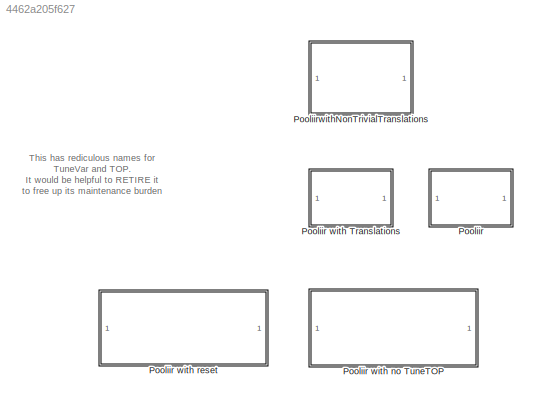
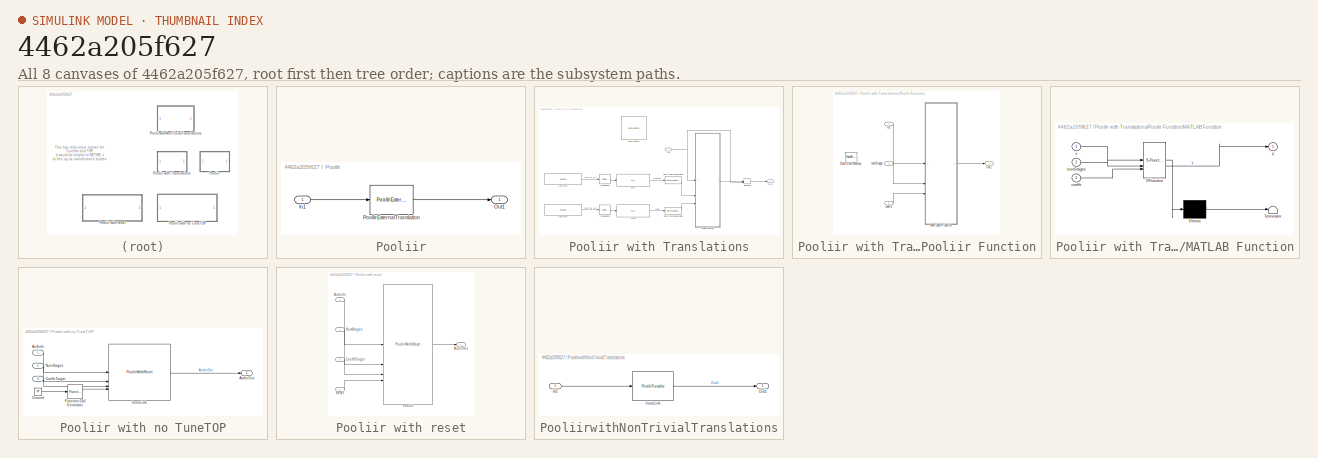
[diagram: thumbnail index - all 8 canvases of the model, root first then tree order]
MODEL slx_4462a205f627
KIND library
CONFIG AbsTol = auto
CONFIG EnableMultiTasking = off
CONFIG FixedStep = auto
CONFIG MaxStep = auto
CONFIG MinStep = auto
CONFIG RelTol = 1e-3
CONFIG SampleTimeConstraint = Unconstrained
CONFIG SolverName = VariableStepAuto
CONFIG StartTime = 0.0
CONFIG StopTime = 10.0
BLOCK [SubSystem] Pooliir
  LoadFcn = fprintf("\n ''%s'' block does not support BTC and hence, it will be deprecated soon. Please replace all the active instances of ""Pooliir"" with an equivalent BTC block.", gcb);
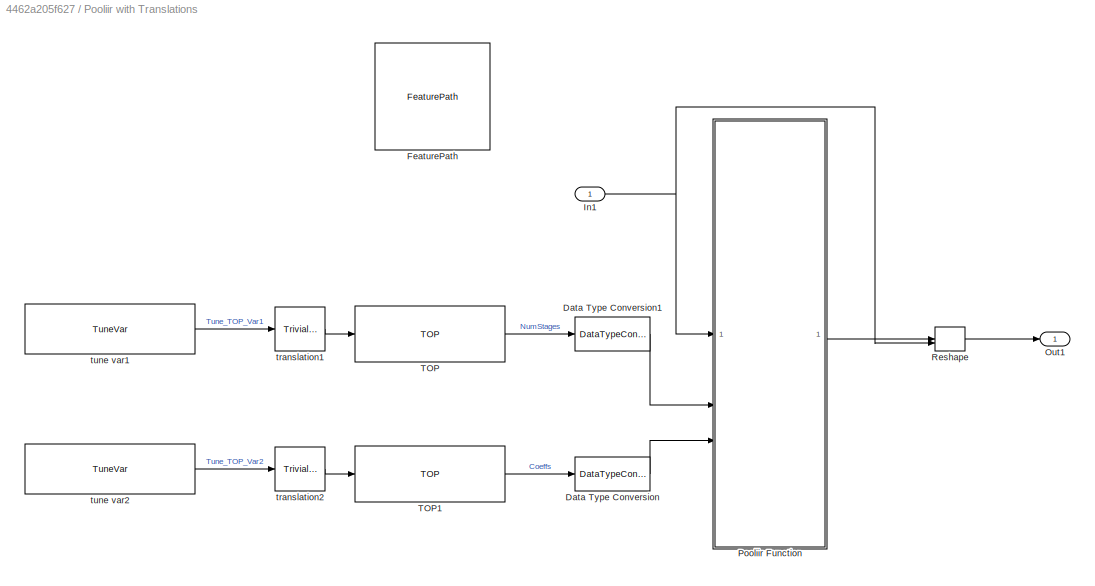
BLOCK [SubSystem] Pooliir with Translations
  Commented = on
BLOCK [DataTypeConversion] Pooliir with Translations/Data Type Conversion
  OutDataTypeStr = single
  RndMeth = Floor
  SaturateOnIntegerOverflow = off
BLOCK [DataTypeConversion] Pooliir with Translations/Data Type Conversion1
  OutDataTypeStr = uint32
  RndMeth = Floor
  SaturateOnIntegerOverflow = off
BLOCK [Reference] Pooliir with Translations/FeaturePath  REF=FeaturePath/FeaturePath
  SourceBlock = FeaturePath/FeaturePath
  SourceProductName = Bose Talaria
  SourceType = Talaria Feature Path
BLOCK [Inport] Pooliir with Translations/In1
BLOCK [Outport] Pooliir with Translations/Out1
  VectorParamsAs1DForOutWhenUnconnected = off
BLOCK [SubSystem] Pooliir with Translations/Pooliir Function
BLOCK [DataStoreMemory] Pooliir with Translations/Pooliir Function/Data Store Memory
  DataStoreName = states
  InitialValue = zeros(1, 2 * maxNumStages)
  OutDataTypeStr = single
  ShowAdditionalParam = off
  SignalType = real
BLOCK [Inport] Pooliir with Translations/Pooliir Function/In1
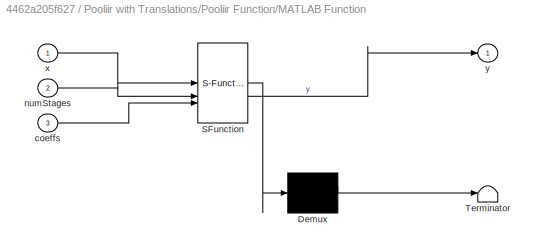
BLOCK [SubSystem] Pooliir with Translations/Pooliir Function/MATLAB Function
  ErrorFcn = Stateflow.Translate.translate
  PermitHierarchicalResolution = ExplicitOnly
  SFBlockType = MATLAB Function
  TreatAsAtomicUnit = on
BLOCK [Demux] Pooliir with Translations/Pooliir Function/MATLAB Function/ Demux 
  Outputs = 1
BLOCK [S-Function] Pooliir with Translations/Pooliir Function/MATLAB Function/ SFunction 
  EnableBusSupport = off
  FunctionName = sf_sfun
  PortCounts = [3 2]
  SFcnIsStateOwnerBlock = off
  SFunctionDeploymentMode = off
  Tag = Stateflow S-Function 2
BLOCK [Terminator] Pooliir with Translations/Pooliir Function/MATLAB Function/ Terminator 
BLOCK [Inport] Pooliir with Translations/Pooliir Function/MATLAB Function/coeffs
  Port = 3
BLOCK [Inport] Pooliir with Translations/Pooliir Function/MATLAB Function/numStages
  Port = 2
BLOCK [Inport] Pooliir with Translations/Pooliir Function/MATLAB Function/x
BLOCK [Outport] Pooliir with Translations/Pooliir Function/MATLAB Function/y
  VectorParamsAs1DForOutWhenUnconnected = off
BLOCK [Outport] Pooliir with Translations/Pooliir Function/Out1
  VectorParamsAs1DForOutWhenUnconnected = off
BLOCK [Inport] Pooliir with Translations/Pooliir Function/coeffs
  Port = 3
BLOCK [Inport] Pooliir with Translations/Pooliir Function/numStages
  Port = 2
BLOCK [Reshape] Pooliir with Translations/Reshape
  OutputDimensionality = Derive from reference input port
BLOCK [Reference] Pooliir with Translations/TOP  REF=TOP/TOP
  SourceBlock = TOP/TOP
  SourceProductName = Bose Talaria
  SourceType = Talaria Target Overlay Parameter
BLOCK [Reference] Pooliir with Translations/TOP1  REF=TOP/TOP
  SourceBlock = TOP/TOP
  SourceProductName = Bose Talaria
  SourceType = Talaria Target Overlay Parameter
BLOCK [Reference] Pooliir with Translations/translation1  REF=TuneVar/TrivialTranslation
  SourceBlock = TuneVar/TrivialTranslation
  SourceProductName = Bose Talaria
  SourceType = Talaria Trivial Translation
BLOCK [Reference] Pooliir with Translations/translation2  REF=TuneVar/TrivialTranslation
  SourceBlock = TuneVar/TrivialTranslation
  SourceProductName = Bose Talaria
  SourceType = Talaria Trivial Translation
BLOCK [Reference] Pooliir with Translations/tune var1  REF=TuneVar/TuneVar
  SourceBlock = TuneVar/TuneVar
  SourceProductName = Bose Talaria
  SourceType = Talaria Tune Variable
BLOCK [Reference] Pooliir with Translations/tune var2  REF=TuneVar/TuneVar
  SourceBlock = TuneVar/TuneVar
  SourceProductName = Bose Talaria
  SourceType = Talaria Tune Variable
BLOCK [SubSystem] Pooliir with no TuneTOP
  LoadFcn = fprintf("\n ''%s'' block does not support BTC and hence, it will be deprecated soon. Please replace all the active instances of ""Pooliir with no TuneTOP"" with an equivalent BTC block.", gcb);
BLOCK [Inport] Pooliir with no TuneTOP/AudioIn
BLOCK [Outport] Pooliir with no TuneTOP/AudioOut
BLOCK [Inport] Pooliir with no TuneTOP/CoeffsTarget
  Port = 3
BLOCK [Reference] Pooliir with no TuneTOP/Function-Call Generator  REF=simulink/Ports &
Subsystems/Function-Call
Generator
  SourceBlock = simulink/Ports &\nSubsystems/Function-Call\nGenerator
  SourceType = Function-Call Generator
BLOCK [Ground] Pooliir with no TuneTOP/Ground
BLOCK [Reference] Pooliir with no TuneTOP/InnerLink  REF=PoolIir/PoolIirWithReset
  SourceBlock = PoolIir/PoolIirWithReset
  SourceType = Bose Pool IIR With Reset
BLOCK [Inport] Pooliir with no TuneTOP/NumStages
  Port = 2
BLOCK [SubSystem] Pooliir with reset
  LoadFcn = fprintf("\n ''%s'' block does not support BTC and hence, it will be deprecated soon. Please replace all the active instances of ""Pooliir with reset"" with an equivalent BTC block.", gcb);
BLOCK [Inport] Pooliir with reset/AudioIn
BLOCK [Outport] Pooliir with reset/AudioOut
  VectorParamsAs1DForOutWhenUnconnected = off
BLOCK [Inport] Pooliir with reset/CoeffsTarget
  Port = 3
BLOCK [Inport] Pooliir with reset/NumStages
  Port = 2
BLOCK [Reference] Pooliir with reset/PoolIir  REF=PoolIir/PoolIirWithReset
  SourceBlock = PoolIir/PoolIirWithReset
  SourceType = Bose Pool IIR With Reset
BLOCK [Inport] Pooliir with reset/Reset
  Port = 4
BLOCK [Inport] Pooliir/In1
BLOCK [Outport] Pooliir/Out1
  VectorParamsAs1DForOutWhenUnconnected = off
BLOCK [Reference] Pooliir/PoolIirExternalTranslation  REF=PoolIir/PoolIirExternalTranslation
  SourceBlock = PoolIir/PoolIirExternalTranslation
BLOCK [SubSystem] PooliirwithNonTrivialTranslations
  LoadFcn = fprintf("\n ''%s'' block does not support BTC and hence, it will be deprecated soon. Please replace all the active instances of ""PooliirwithNonTrivialTranslations"" with an equivalent BTC block.", gcb);
BLOCK [Inport] PooliirwithNonTrivialTranslations/In1
BLOCK [Reference] PooliirwithNonTrivialTranslations/InnerLink  REF=PoolIir/PoolIirTunable
  SourceBlock = PoolIir/PoolIirTunable
  SourceType = Bose Pool IIR Tunable
BLOCK [Outport] PooliirwithNonTrivialTranslations/Out1
ANNOTATION (root): This has rediculous names for TuneVar and TOP. It would be helpful to RETIRE it to free up its maintenance burden
LINE Pooliir with no TuneTOP/AudioIn:1 -> Pooliir with no TuneTOP/InnerLink:1
LINE Pooliir with no TuneTOP/CoeffsTarget:1 -> Pooliir with no TuneTOP/InnerLink:3
LINE Pooliir with no TuneTOP/Function-Call Generator:1 -> Pooliir with no TuneTOP/InnerLink:4
LINE Pooliir with no TuneTOP/Ground:1 -> Pooliir with no TuneTOP/Function-Call Generator:1
LINE Pooliir with no TuneTOP/InnerLink:1 -> Pooliir with no TuneTOP/AudioOut:1
LINE Pooliir with no TuneTOP/NumStages:1 -> Pooliir with no TuneTOP/InnerLink:2
LINE Pooliir with reset/AudioIn:1 -> Pooliir with reset/PoolIir:1
LINE Pooliir with reset/CoeffsTarget:1 -> Pooliir with reset/PoolIir:3
LINE Pooliir with reset/NumStages:1 -> Pooliir with reset/PoolIir:2
LINE Pooliir with reset/PoolIir:1 -> Pooliir with reset/AudioOut:1
LINE Pooliir with reset/Reset:1 -> Pooliir with reset/PoolIir:4
CHART Pooliir with Translations/Pooliir Function/MATLAB Function states=1 transitions=1
  STATE_LABEL 'eML_blk_kernel()'
  STATE_LABEL 'SCRIPT:\nfunction y = pooliir_filter(x,numStages, coeffs)\n% Extract configuration information from inputs\n[frame_size, num_channels] = size(x);\n\n% Initialize variables\nglobal states;\n\nframe_size = uint32(frame_size);\nnum_channels = uint32(num_channels);\n\ny = pooliir(x, frame_size, num_channels, numStages, coeffs, states);\n\nend\n\nfunction y = pooliir(x, frameSize, numChannels, numStages, coeffs, stat...<+3491ch>'
CHART  states=0 transitions=0
